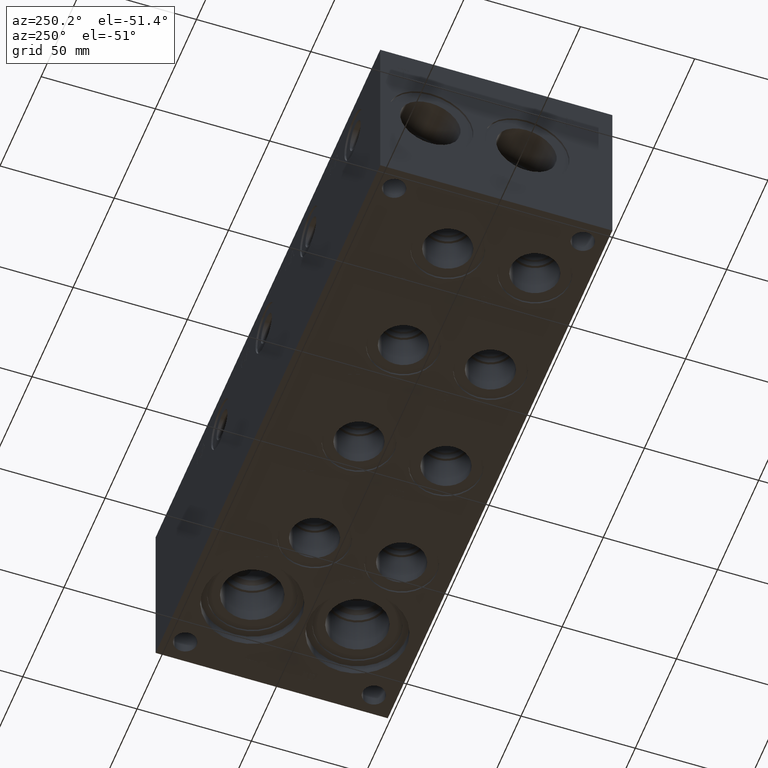
[diagram: clean part render]
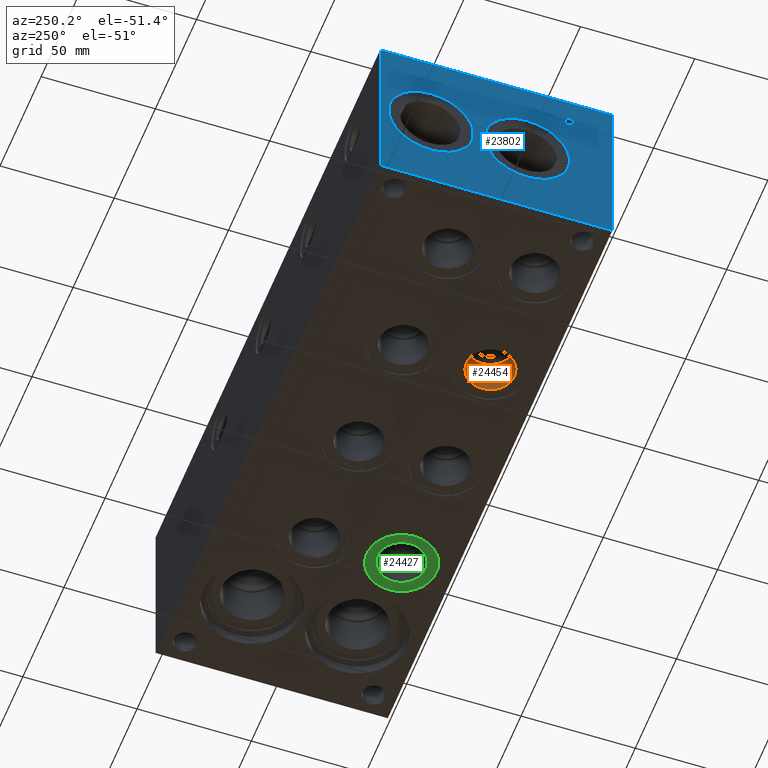
[diagram: same view with three faces highlighted in distinct colors, each labeled with its STEP entity id]
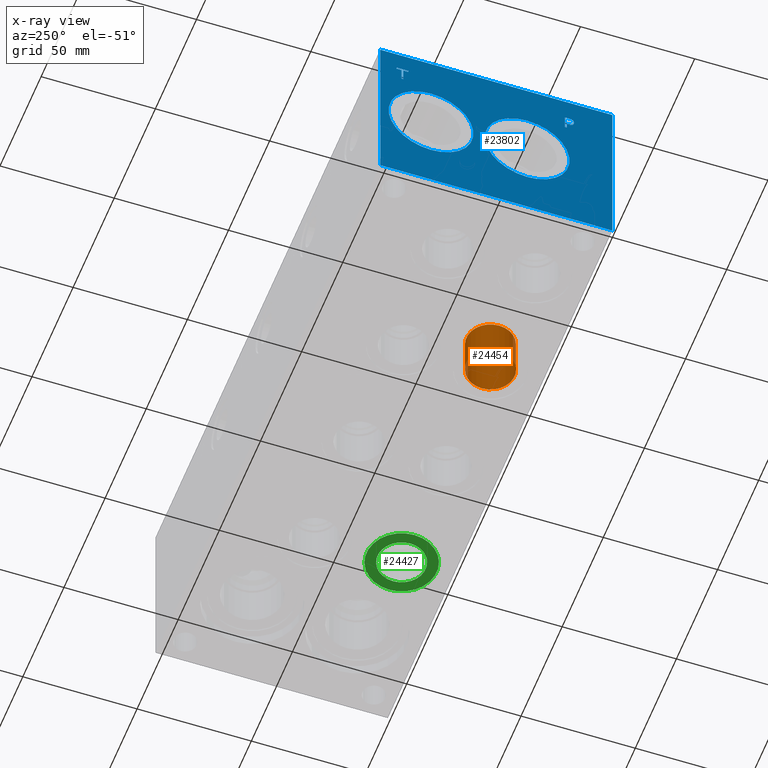
[diagram: x-ray of the same camera — body ghosted, the three highlighted faces saturated]
A machine part, auxiliary view with three faces highlighted in distinct colors.
The next image is the same camera in x-ray (body ghosted, the three faces saturated) — at least one of them is partly hidden behind the body in this view.
Their STEP definitions:

[orange] entity #24454 — the highlighted cylindrical surface (bore or boss wall) has radius 10.5283 mm, axis along (0, 0, 1).
#51=CYLINDRICAL_SURFACE('',#25542,10.5283);
#431=CIRCLE('',#25540,10.5283);
#432=CIRCLE('',#25541,10.5283);
#433=CIRCLE('',#25543,10.5283);
#434=CIRCLE('',#25544,10.5283);
#3226=FACE_OUTER_BOUND('',#4634,.T.);
#4634=EDGE_LOOP('',(#20601,#20602,#20603,#20604,#20605,#20606));
#6871=LINE('',#42069,#8967);
#8967=VECTOR('',#29763,10.5283);
#11086=VERTEX_POINT('',#42063);
#11087=VERTEX_POINT('',#42064);
#11088=VERTEX_POINT('',#42068);
#11089=VERTEX_POINT('',#42070);
#14393=EDGE_CURVE('',#11086,#11087,#431,.T.);
#14394=EDGE_CURVE('',#11087,#11086,#432,.T.);
#14395=EDGE_CURVE('',#11087,#11088,#6871,.T.);
#14396=EDGE_CURVE('',#11088,#11089,#433,.T.);
#14397=EDGE_CURVE('',#11089,#11088,#434,.T.);
#20601=ORIENTED_EDGE('',*,*,#14393,.F.);
#20602=ORIENTED_EDGE('',*,*,#14394,.F.);
#20603=ORIENTED_EDGE('',*,*,#14395,.T.);
#20604=ORIENTED_EDGE('',*,*,#14396,.T.);
#20605=ORIENTED_EDGE('',*,*,#14397,.T.);
#20606=ORIENTED_EDGE('',*,*,#14395,.F.);
#24454=ADVANCED_FACE('',(#3226),#51,.F.);
#25540=AXIS2_PLACEMENT_3D('',#42065,#29757,#29758);
#25541=AXIS2_PLACEMENT_3D('',#42066,#29759,#29760);
#25542=AXIS2_PLACEMENT_3D('',#42067,#29761,#29762);
#25543=AXIS2_PLACEMENT_3D('',#42071,#29764,#29765);
#25544=AXIS2_PLACEMENT_3D('',#42072,#29766,#29767);
#29757=DIRECTION('center_axis',(0.,0.,1.));
#29758=DIRECTION('ref_axis',(1.,0.,0.));
#29759=DIRECTION('center_axis',(0.,0.,1.));
#29760=DIRECTION('ref_axis',(1.,0.,0.));
#29761=DIRECTION('center_axis',(0.,0.,1.));
#29762=DIRECTION('ref_axis',(1.,0.,0.));
#29763=DIRECTION('',(0.,0.,1.));
#29764=DIRECTION('center_axis',(0.,0.,1.));
#29765=DIRECTION('ref_axis',(1.,0.,0.));
#29766=DIRECTION('center_axis',(0.,0.,1.));
#29767=DIRECTION('ref_axis',(1.,0.,0.));
#42063=CARTESIAN_POINT('',(97.0407,22.225,0.7874));
#42064=CARTESIAN_POINT('',(75.9841,22.225,0.787400000000001));
#42065=CARTESIAN_POINT('Origin',(86.5124,22.225,0.7874));
#42066=CARTESIAN_POINT('Origin',(86.5124,22.225,0.7874));
#42067=CARTESIAN_POINT('Origin',(86.5124,22.225,9.0805));
#42068=CARTESIAN_POINT('',(75.9841,22.225,17.3736));
#42069=CARTESIAN_POINT('',(75.9841,22.225,9.0805));
#42070=CARTESIAN_POINT('',(97.0407,22.225,17.3736));
#42071=CARTESIAN_POINT('Origin',(86.5124,22.225,17.3736));
#42072=CARTESIAN_POINT('Origin',(86.5124,22.225,17.3736));

[blue] entity #23802 — the highlighted planar face has unit normal (-1, 0, 0).
#294=CIRCLE('',#24992,18.5547);
#295=CIRCLE('',#24993,18.5547);
#296=CIRCLE('',#24994,18.5547);
#297=CIRCLE('',#24995,18.5547);
#887=FACE_BOUND('',#3905,.T.);
#888=FACE_BOUND('',#3906,.T.);
#889=FACE_BOUND('',#3907,.T.);
#890=FACE_BOUND('',#3908,.T.);
#1314=B_SPLINE_CURVE_WITH_KNOTS('',2,(#35060,#35061,#35062,#35063),
 .UNSPECIFIED.,.F.,.F.,(3,1,3),(0.,1.,2.),.UNSPECIFIED.);
#1316=B_SPLINE_CURVE_WITH_KNOTS('',2,(#35081,#35082,#35083,#35084),
 .UNSPECIFIED.,.F.,.F.,(3,1,3),(0.,1.,2.),.UNSPECIFIED.);
#1318=B_SPLINE_CURVE_WITH_KNOTS('',2,(#35130,#35131,#35132,#35133),
 .UNSPECIFIED.,.F.,.F.,(3,1,3),(0.,1.,2.),.UNSPECIFIED.);
#1320=B_SPLINE_CURVE_WITH_KNOTS('',2,(#35148,#35149,#35150,#35151),
 .UNSPECIFIED.,.F.,.F.,(3,1,3),(0.,1.,2.),.UNSPECIFIED.);
#2574=FACE_OUTER_BOUND('',#3904,.T.);
#3904=EDGE_LOOP('',(#17024,#17025,#17026,#17027));
#3905=EDGE_LOOP('',(#17028,#17029,#17030,#17031,#17032,#17033,#17034,#17035));
#3906=EDGE_LOOP('',(#17036,#17037));
#3907=EDGE_LOOP('',(#17038,#17039));
#3908=EDGE_LOOP('',(#17040,#17041,#17042,#17043,#17044,#17045,#17046,#17047,
#17048));
#5015=LINE('',#31468,#7111);
#5394=LINE('',#33494,#7490);
#5659=LINE('',#34910,#7755);
#5663=LINE('',#34918,#7759);
#5666=LINE('',#34924,#7762);
#5669=LINE('',#34930,#7765);
#5672=LINE('',#34936,#7768);
#5675=LINE('',#34942,#7771);
#5678=LINE('',#34948,#7774);
#5681=LINE('',#34953,#7777);
#5699=LINE('',#35093,#7795);
#5702=LINE('',#35099,#7798);
#5705=LINE('',#35105,#7801);
#5708=LINE('',#35111,#7804);
#5711=LINE('',#35117,#7807);
#5715=LINE('',#35159,#7811);
#5716=LINE('',#35160,#7812);
#7111=VECTOR('',#26273,10.);
#7490=VECTOR('',#26958,10.);
#7755=VECTOR('',#27413,10.);
#7759=VECTOR('',#27419,10.);
#7762=VECTOR('',#27424,10.);
#7765=VECTOR('',#27429,10.);
#7768=VECTOR('',#27434,10.);
#7771=VECTOR('',#27439,10.);
#7774=VECTOR('',#27444,10.);
#7777=VECTOR('',#27449,10.);
#7795=VECTOR('',#27477,10.);
#7798=VECTOR('',#27482,10.);
#7801=VECTOR('',#27487,10.);
#7804=VECTOR('',#27492,10.);
#7807=VECTOR('',#27497,10.);
#7811=VECTOR('',#27505,10.);
#7812=VECTOR('',#27506,10.);
#9198=VERTEX_POINT('',#31464);
#9200=VERTEX_POINT('',#31467);
#9574=VERTEX_POINT('',#33493);
#9829=VERTEX_POINT('',#34908);
#9830=VERTEX_POINT('',#34909);
#9833=VERTEX_POINT('',#34917);
#9835=VERTEX_POINT('',#34923);
#9837=VERTEX_POINT('',#34929);
#9839=VERTEX_POINT('',#34935);
#9841=VERTEX_POINT('',#34941);
#9843=VERTEX_POINT('',#34947);
#9859=VERTEX_POINT('',#35058);
#9860=VERTEX_POINT('',#35059);
#9863=VERTEX_POINT('',#35080);
#9865=VERTEX_POINT('',#35092);
#9867=VERTEX_POINT('',#35098);
#9869=VERTEX_POINT('',#35104);
#9871=VERTEX_POINT('',#35110);
#9873=VERTEX_POINT('',#35116);
#9875=VERTEX_POINT('',#35129);
#9877=VERTEX_POINT('',#35158);
#9878=VERTEX_POINT('',#35161);
#9879=VERTEX_POINT('',#35162);
#9880=VERTEX_POINT('',#35165);
#9881=VERTEX_POINT('',#35166);
#11608=EDGE_CURVE('',#9200,#9198,#5015,.T.);
#12155=EDGE_CURVE('',#9200,#9574,#5394,.T.);
#12532=EDGE_CURVE('',#9829,#9830,#5659,.T.);
#12536=EDGE_CURVE('',#9833,#9829,#5663,.T.);
#12539=EDGE_CURVE('',#9835,#9833,#5666,.T.);
#12542=EDGE_CURVE('',#9837,#9835,#5669,.T.);
#12545=EDGE_CURVE('',#9839,#9837,#5672,.T.);
#12548=EDGE_CURVE('',#9841,#9839,#5675,.T.);
#12551=EDGE_CURVE('',#9843,#9841,#5678,.T.);
#12554=EDGE_CURVE('',#9830,#9843,#5681,.T.);
#12577=EDGE_CURVE('',#9859,#9860,#1314,.T.);
#12581=EDGE_CURVE('',#9863,#9859,#1316,.T.);
#12584=EDGE_CURVE('',#9865,#9863,#5699,.T.);
#12587=EDGE_CURVE('',#9867,#9865,#5702,.T.);
#12590=EDGE_CURVE('',#9869,#9867,#5705,.T.);
#12593=EDGE_CURVE('',#9871,#9869,#5708,.T.);
#12596=EDGE_CURVE('',#9873,#9871,#5711,.T.);
#12599=EDGE_CURVE('',#9875,#9873,#1318,.T.);
#12602=EDGE_CURVE('',#9860,#9875,#1320,.T.);
#12604=EDGE_CURVE('',#9198,#9877,#5715,.T.);
#12605=EDGE_CURVE('',#9574,#9877,#5716,.T.);
#12606=EDGE_CURVE('',#9878,#9879,#294,.T.);
#12607=EDGE_CURVE('',#9879,#9878,#295,.T.);
#12608=EDGE_CURVE('',#9880,#9881,#296,.T.);
#12609=EDGE_CURVE('',#9881,#9880,#297,.T.);
#17024=ORIENTED_EDGE('',*,*,#11608,.T.);
#17025=ORIENTED_EDGE('',*,*,#12604,.T.);
#17026=ORIENTED_EDGE('',*,*,#12605,.F.);
#17027=ORIENTED_EDGE('',*,*,#12155,.F.);
#17028=ORIENTED_EDGE('',*,*,#12532,.T.);
#17029=ORIENTED_EDGE('',*,*,#12554,.T.);
#17030=ORIENTED_EDGE('',*,*,#12551,.T.);
#17031=ORIENTED_EDGE('',*,*,#12548,.T.);
#17032=ORIENTED_EDGE('',*,*,#12545,.T.);
#17033=ORIENTED_EDGE('',*,*,#12542,.T.);
#17034=ORIENTED_EDGE('',*,*,#12539,.T.);
#17035=ORIENTED_EDGE('',*,*,#12536,.T.);
#17036=ORIENTED_EDGE('',*,*,#12606,.T.);
#17037=ORIENTED_EDGE('',*,*,#12607,.T.);
#17038=ORIENTED_EDGE('',*,*,#12608,.T.);
#17039=ORIENTED_EDGE('',*,*,#12609,.T.);
#17040=ORIENTED_EDGE('',*,*,#12577,.T.);
#17041=ORIENTED_EDGE('',*,*,#12602,.T.);
#17042=ORIENTED_EDGE('',*,*,#12599,.T.);
#17043=ORIENTED_EDGE('',*,*,#12596,.T.);
#17044=ORIENTED_EDGE('',*,*,#12593,.T.);
#17045=ORIENTED_EDGE('',*,*,#12590,.T.);
#17046=ORIENTED_EDGE('',*,*,#12587,.T.);
#17047=ORIENTED_EDGE('',*,*,#12584,.T.);
#17048=ORIENTED_EDGE('',*,*,#12581,.T.);
#22093=PLANE('',#24991);
#23802=ADVANCED_FACE('',(#2574,#887,#888,#889,#890),#22093,.T.);
#24991=AXIS2_PLACEMENT_3D('',#35157,#27503,#27504);
#24992=AXIS2_PLACEMENT_3D('',#35163,#27507,#27508);
#24993=AXIS2_PLACEMENT_3D('',#35164,#27509,#27510);
#24994=AXIS2_PLACEMENT_3D('',#35167,#27511,#27512);
#24995=AXIS2_PLACEMENT_3D('',#35168,#27513,#27514);
#26273=DIRECTION('',(0.,-1.,0.));
#26958=DIRECTION('',(0.,0.,1.));
#27413=DIRECTION('',(0.,1.,0.));
#27419=DIRECTION('',(0.,3.17280044688052E-15,-1.));
#27424=DIRECTION('',(0.,1.,0.));
#27429=DIRECTION('',(0.,0.,-1.));
#27434=DIRECTION('',(0.,-1.,-1.73992282570867E-15));
#27439=DIRECTION('',(0.,0.,1.));
#27444=DIRECTION('',(0.,1.,4.16909044227778E-15));
#27449=DIRECTION('',(0.,-3.17280044688052E-15,1.));
#27477=DIRECTION('',(0.,-1.,-5.56775304226774E-15));
#27482=DIRECTION('',(0.,-3.49676548440641E-15,1.));
#27487=DIRECTION('',(0.,1.,0.));
#27492=DIRECTION('',(0.,3.75218139805001E-15,-1.));
#27497=DIRECTION('',(0.,1.,0.));
#27503=DIRECTION('center_axis',(-1.,0.,0.));
#27504=DIRECTION('ref_axis',(0.,-1.,0.));
#27505=DIRECTION('',(0.,0.,1.));
#27506=DIRECTION('',(0.,-1.,0.));
#27507=DIRECTION('center_axis',(1.,0.,0.));
#27508=DIRECTION('ref_axis',(0.,0.,1.));
#27509=DIRECTION('center_axis',(1.,0.,0.));
#27510=DIRECTION('ref_axis',(0.,0.,1.));
#27511=DIRECTION('center_axis',(1.,0.,0.));
#27512=DIRECTION('ref_axis',(0.,0.,1.));
#27513=DIRECTION('center_axis',(1.,0.,0.));
#27514=DIRECTION('ref_axis',(0.,0.,1.));
#31464=CARTESIAN_POINT('',(0.,0.,0.));
#31467=CARTESIAN_POINT('',(0.,101.6,0.));
#31468=CARTESIAN_POINT('',(0.,101.6,0.));
#33493=CARTESIAN_POINT('',(0.,101.6,76.2));
#33494=CARTESIAN_POINT('',(0.,101.6,0.));
#34908=CARTESIAN_POINT('',(0.,91.487084728547,61.11875));
#34909=CARTESIAN_POINT('',(0.,92.3310069200865,61.11875));
#34910=CARTESIAN_POINT('',(0.,96.5435423642735,61.11875));
#34917=CARTESIAN_POINT('',(0.,91.487084728547,66.7174533194815));
#34918=CARTESIAN_POINT('',(0.,91.4870847285471,33.3587266597408));
#34923=CARTESIAN_POINT('',(0.,89.3566957816119,66.7174533194815));
#34924=CARTESIAN_POINT('',(0.,95.4783478908059,66.7174533194815));
#34929=CARTESIAN_POINT('',(0.,89.3566957816119,67.4687499046326));
#34930=CARTESIAN_POINT('',(0.,89.3566957816119,33.7343749523163));
#34935=CARTESIAN_POINT('',(0.,94.4613958670215,67.4687499046326));
#34936=CARTESIAN_POINT('',(0.,98.0306979335107,67.4687499046326));
#34941=CARTESIAN_POINT('',(0.,94.4613958670215,66.7174533194816));
#34942=CARTESIAN_POINT('',(0.,94.4613958670216,33.3587266597408));
#34947=CARTESIAN_POINT('',(0.,92.3310069200865,66.7174533194815));
#34948=CARTESIAN_POINT('',(0.,96.9655034600431,66.7174533194816));
#34953=CARTESIAN_POINT('',(0.,92.3310069200866,30.559375));
#35058=CARTESIAN_POINT('',(0.,17.5306827976406,65.4850181439707));
#35059=CARTESIAN_POINT('',(0.,16.774240345468,63.9669873726039));
#35060=CARTESIAN_POINT('Ctrl Pts',(0.,17.5306827976406,65.4850181439707));
#35061=CARTESIAN_POINT('Ctrl Pts',(0.,17.1756179731514,65.2431623939564));
#35062=CARTESIAN_POINT('Ctrl Pts',(0.,16.774240345468,64.4970116758269));
#35063=CARTESIAN_POINT('Ctrl Pts',(0.,16.774240345468,63.9669873726039));
#35080=CARTESIAN_POINT('',(0.,19.1927978456117,65.8812499046326));
#35081=CARTESIAN_POINT('Ctrl Pts',(0.,19.1927978456117,65.8812499046326));
#35082=CARTESIAN_POINT('Ctrl Pts',(0.,18.6267524732376,65.8812499046326));
#35083=CARTESIAN_POINT('Ctrl Pts',(0.,17.834288951914,65.6959986918556));
#35084=CARTESIAN_POINT('Ctrl Pts',(0.,17.5306827976406,65.4850181439707));
#35092=CARTESIAN_POINT('',(0.,20.7880166223022,65.8812499046326));
#35093=CARTESIAN_POINT('',(0.,61.1940083111509,65.8812499046328));
#35098=CARTESIAN_POINT('',(0.,20.7880166223022,59.53125));
#35099=CARTESIAN_POINT('',(0.,20.7880166223023,29.7656249999999));
#35104=CARTESIAN_POINT('',(0.,19.9440944307627,59.53125));
#35105=CARTESIAN_POINT('',(0.,60.7720472153814,59.53125));
#35110=CARTESIAN_POINT('',(0.,19.9440944307627,61.8983488299279));
#35111=CARTESIAN_POINT('',(0.,19.9440944307628,30.9491744149638));
#35116=CARTESIAN_POINT('',(0.,19.2288189147628,61.8983488299279));
#35117=CARTESIAN_POINT('',(0.,60.4144094573814,61.8983488299279));
#35129=CARTESIAN_POINT('',(0.,17.3299939837989,62.5570198086904));
#35130=CARTESIAN_POINT('Ctrl Pts',(0.,17.3299939837989,62.5570198086904));
#35131=CARTESIAN_POINT('Ctrl Pts',(0.,17.6593294731802,62.2328301863307));
#35132=CARTESIAN_POINT('Ctrl Pts',(0.,18.5495644679139,61.8983488299279));
#35133=CARTESIAN_POINT('Ctrl Pts',(0.,19.2288189147628,61.8983488299279));
#35148=CARTESIAN_POINT('Ctrl Pts',(0.,16.774240345468,63.9669873726039));
#35149=CARTESIAN_POINT('Ctrl Pts',(0.,16.774240345468,63.5553180108774));
#35150=CARTESIAN_POINT('Ctrl Pts',(0.,17.0675547656982,62.8143131597695));
#35151=CARTESIAN_POINT('Ctrl Pts',(0.,17.3299939837989,62.5570198086904));
#35157=CARTESIAN_POINT('Origin',(0.,101.6,0.));
#35158=CARTESIAN_POINT('',(0.,0.,76.2));
#35159=CARTESIAN_POINT('',(0.,0.,0.));
#35160=CARTESIAN_POINT('',(0.,101.6,76.2));
#35161=CARTESIAN_POINT('',(0.,37.3126,56.6547));
#35162=CARTESIAN_POINT('',(0.,37.3126,19.5453));
#35163=CARTESIAN_POINT('Origin',(0.,37.3126,38.1));
#35164=CARTESIAN_POINT('Origin',(0.,37.3126,38.1));
#35165=CARTESIAN_POINT('',(0.,79.375,56.6547));
#35166=CARTESIAN_POINT('',(0.,79.375,19.5453));
#35167=CARTESIAN_POINT('Origin',(0.,79.375,38.1));
#35168=CARTESIAN_POINT('Origin',(0.,79.375,38.1));

[green] entity #24427 — the highlighted planar face has unit normal (0, 0, 1).
#392=CIRCLE('',#25474,15.3416);
#393=CIRCLE('',#25475,15.3416);
#394=CIRCLE('',#25477,10.5283);
#395=CIRCLE('',#25478,10.5283);
#960=FACE_BOUND('',#4603,.T.);
#3199=FACE_OUTER_BOUND('',#4602,.T.);
#4602=EDGE_LOOP('',(#20472,#20473));
#4603=EDGE_LOOP('',(#20474,#20475));
#11040=VERTEX_POINT('',#41928);
#11041=VERTEX_POINT('',#41930);
#11042=VERTEX_POINT('',#41934);
#11043=VERTEX_POINT('',#41935);
#14332=EDGE_CURVE('',#11040,#11041,#392,.T.);
#14333=EDGE_CURVE('',#11041,#11040,#393,.T.);
#14334=EDGE_CURVE('',#11042,#11043,#394,.T.);
#14335=EDGE_CURVE('',#11043,#11042,#395,.T.);
#20472=ORIENTED_EDGE('',*,*,#14333,.F.);
#20473=ORIENTED_EDGE('',*,*,#14332,.F.);
#20474=ORIENTED_EDGE('',*,*,#14334,.T.);
#20475=ORIENTED_EDGE('',*,*,#14335,.T.);
#22444=PLANE('',#25476);
#24427=ADVANCED_FACE('',(#3199,#960),#22444,.F.);
#25474=AXIS2_PLACEMENT_3D('',#41931,#29603,#29604);
#25475=AXIS2_PLACEMENT_3D('',#41932,#29605,#29606);
#25476=AXIS2_PLACEMENT_3D('',#41933,#29607,#29608);
#25477=AXIS2_PLACEMENT_3D('',#41936,#29609,#29610);
#25478=AXIS2_PLACEMENT_3D('',#41937,#29611,#29612);
#29603=DIRECTION('center_axis',(0.,0.,1.));
#29604=DIRECTION('ref_axis',(1.,0.,0.));
#29605=DIRECTION('center_axis',(0.,0.,1.));
#29606=DIRECTION('ref_axis',(1.,0.,0.));
#29607=DIRECTION('center_axis',(0.,0.,1.));
#29608=DIRECTION('ref_axis',(1.,0.,0.));
#29609=DIRECTION('center_axis',(0.,0.,1.));
#29610=DIRECTION('ref_axis',(1.,0.,0.));
#29611=DIRECTION('center_axis',(0.,0.,1.));
#29612=DIRECTION('ref_axis',(1.,0.,0.));
#41928=CARTESIAN_POINT('',(179.1208,22.225,0.7874));
#41930=CARTESIAN_POINT('',(209.804,22.225,0.7874));
#41931=CARTESIAN_POINT('Origin',(194.4624,22.225,0.7874));
#41932=CARTESIAN_POINT('Origin',(194.4624,22.225,0.7874));
#41933=CARTESIAN_POINT('Origin',(204.9907,22.225,0.7874));
#41934=CARTESIAN_POINT('',(204.9907,22.225,0.7874));
#41935=CARTESIAN_POINT('',(183.9341,22.225,0.787400000000001));
#41936=CARTESIAN_POINT('Origin',(194.4624,22.225,0.7874));
#41937=CARTESIAN_POINT('Origin',(194.4624,22.225,0.7874));